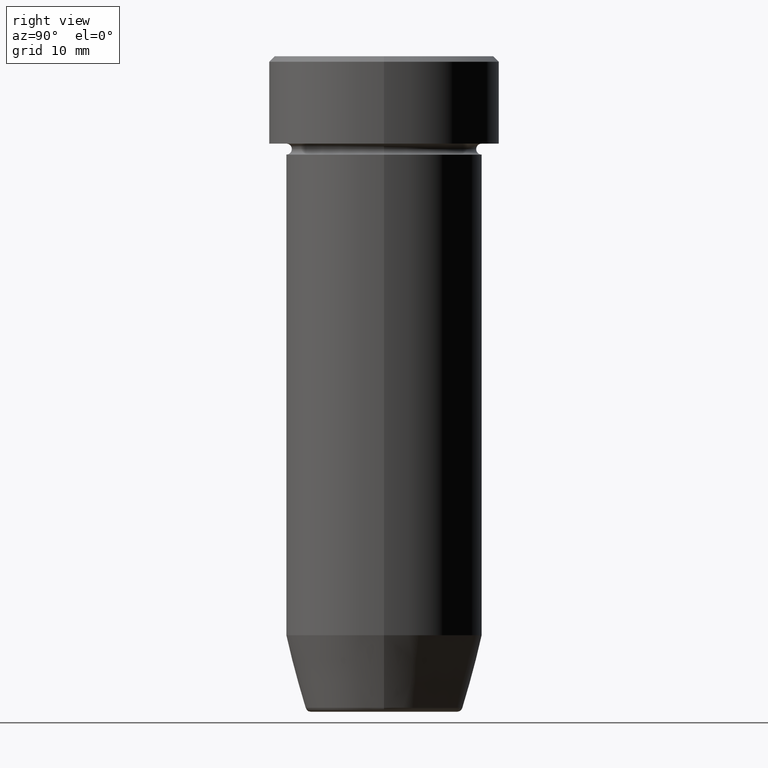
[diagram: clean part render]
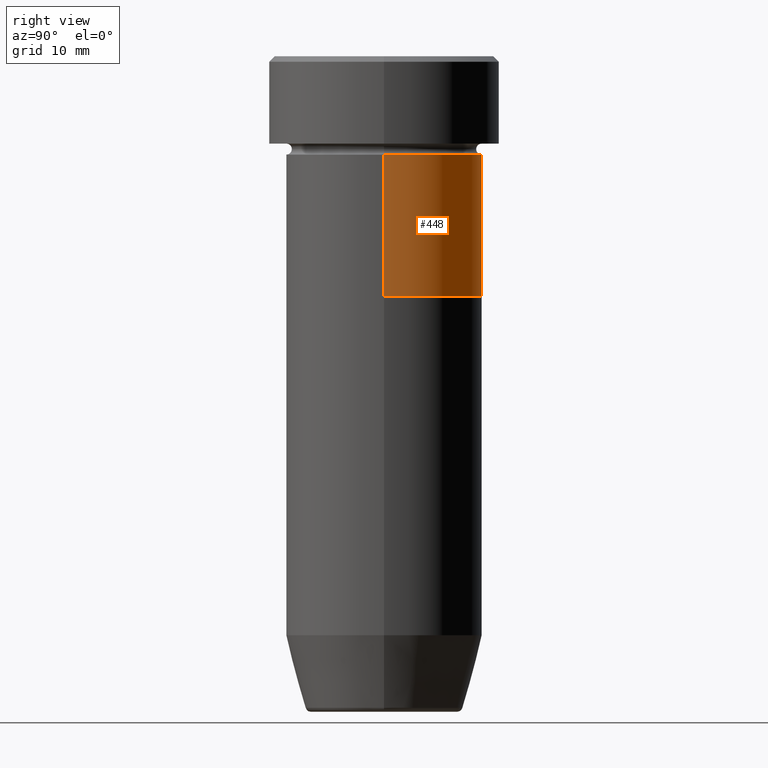
[diagram: same view with one face highlighted and labeled with its STEP entity id]
A machine part, right view. The second image highlights one B-rep face of the part: STEP entity #448.
In plain terms, the highlighted cylindrical surface (partial cylindrical patch) has radius 9 mm, axis along (-0, -0, 1).
Its self-contained STEP definition (entity closure, byte-faithful):
#16 = VERTEX_POINT ( 'NONE', #124 ) ;
#21 = DIRECTION ( 'NONE',  ( -0.000000000000000000, -0.000000000000000000, 1.000000000000000000 ) ) ;
#35 = EDGE_CURVE ( 'NONE', #339, #432, #76, .T. ) ;
#40 = DIRECTION ( 'NONE',  ( 1.000000000000000000, 0.000000000000000000, 0.000000000000000000 ) ) ;
#42 = LINE ( 'NONE', #129, #481 ) ;
#44 = ORIENTED_EDGE ( 'NONE', *, *, #392, .F. ) ;
#45 = CIRCLE ( 'NONE', #222, 9.000000000000000000 ) ;
#47 = AXIS2_PLACEMENT_3D ( 'NONE', #447, #463, #502 ) ;
#53 = ORIENTED_EDGE ( 'NONE', *, *, #319, .T. ) ;
#76 = CIRCLE ( 'NONE', #459, 9.000000000000000000 ) ;
#84 = ORIENTED_EDGE ( 'NONE', *, *, #176, .F. ) ;
#92 = FACE_OUTER_BOUND ( 'NONE', #280, .T. ) ;
#124 = CARTESIAN_POINT ( 'NONE',  ( -9.000000000000000000, 1.102182119232617714E-15, -9.000000000000001776 ) ) ;
#129 = CARTESIAN_POINT ( 'NONE',  ( 9.000000000000000000, 0.000000000000000000, 0.000000000000000000 ) ) ;
#176 = EDGE_CURVE ( 'NONE', #506, #16, #45, .T. ) ;
#186 = CARTESIAN_POINT ( 'NONE',  ( 0.000000000000000000, 0.000000000000000000, -9.000000000000001776 ) ) ;
#222 = AXIS2_PLACEMENT_3D ( 'NONE', #186, #556, #40 ) ;
#267 = DIRECTION ( 'NONE',  ( 1.000000000000000000, 0.000000000000000000, 0.000000000000000000 ) ) ;
#280 = EDGE_LOOP ( 'NONE', ( #368, #53, #84, #44 ) ) ;
#313 = CARTESIAN_POINT ( 'NONE',  ( 0.000000000000000000, 0.000000000000000000, -22.00000000000000000 ) ) ;
#314 = DIRECTION ( 'NONE',  ( -0.000000000000000000, -0.000000000000000000, 1.000000000000000000 ) ) ;
#319 = EDGE_CURVE ( 'NONE', #432, #16, #435, .T. ) ;
#339 = VERTEX_POINT ( 'NONE', #536 ) ;
#341 = CARTESIAN_POINT ( 'NONE',  ( -9.000000000000000000, 1.102182119232617714E-15, 0.000000000000000000 ) ) ;
#358 = CARTESIAN_POINT ( 'NONE',  ( 9.000000000000000000, 0.000000000000000000, -9.000000000000001776 ) ) ;
#368 = ORIENTED_EDGE ( 'NONE', *, *, #35, .T. ) ;
#392 = EDGE_CURVE ( 'NONE', #339, #506, #42, .T. ) ;
#432 = VERTEX_POINT ( 'NONE', #455 ) ;
#435 = LINE ( 'NONE', #341, #469 ) ;
#439 = DIRECTION ( 'NONE',  ( -0.000000000000000000, -0.000000000000000000, 1.000000000000000000 ) ) ;
#447 = CARTESIAN_POINT ( 'NONE',  ( 0.000000000000000000, 0.000000000000000000, 0.000000000000000000 ) ) ;
#448 = ADVANCED_FACE ( 'NONE', ( #92 ), #498, .T. ) ;
#455 = CARTESIAN_POINT ( 'NONE',  ( -9.000000000000000000, 1.102182119232617714E-15, -22.00000000000000000 ) ) ;
#459 = AXIS2_PLACEMENT_3D ( 'NONE', #313, #21, #267 ) ;
#463 = DIRECTION ( 'NONE',  ( -0.000000000000000000, -0.000000000000000000, 1.000000000000000000 ) ) ;
#469 = VECTOR ( 'NONE', #439, 1000.000000000000000 ) ;
#481 = VECTOR ( 'NONE', #314, 1000.000000000000000 ) ;
#498 = CYLINDRICAL_SURFACE ( 'NONE', #47, 9.000000000000000000 ) ;
#502 = DIRECTION ( 'NONE',  ( 1.000000000000000000, 0.000000000000000000, 0.000000000000000000 ) ) ;
#506 = VERTEX_POINT ( 'NONE', #358 ) ;
#536 = CARTESIAN_POINT ( 'NONE',  ( 9.000000000000000000, 0.000000000000000000, -22.00000000000000000 ) ) ;
#556 = DIRECTION ( 'NONE',  ( -0.000000000000000000, -0.000000000000000000, 1.000000000000000000 ) ) ;